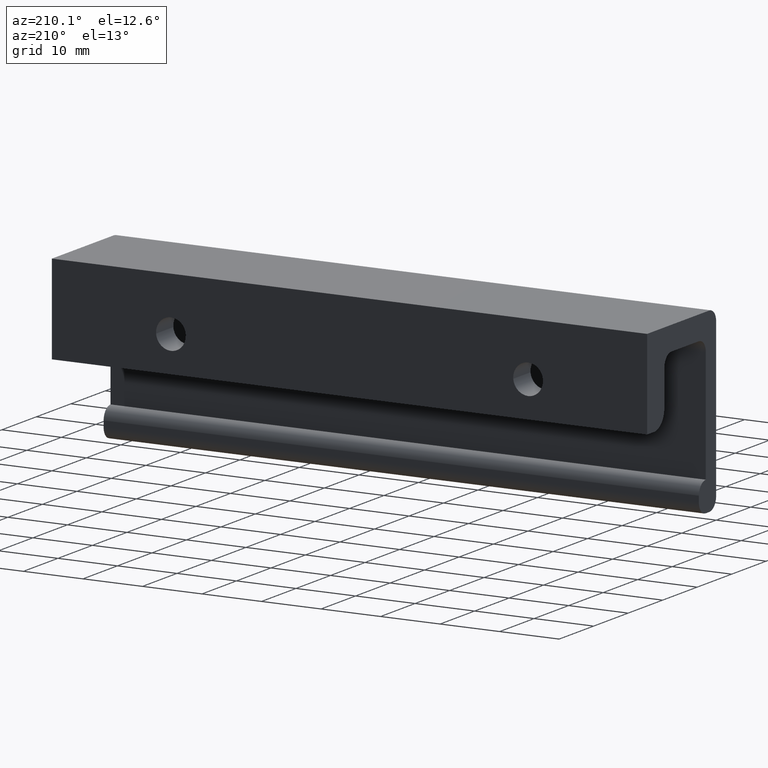
[diagram: clean part render]
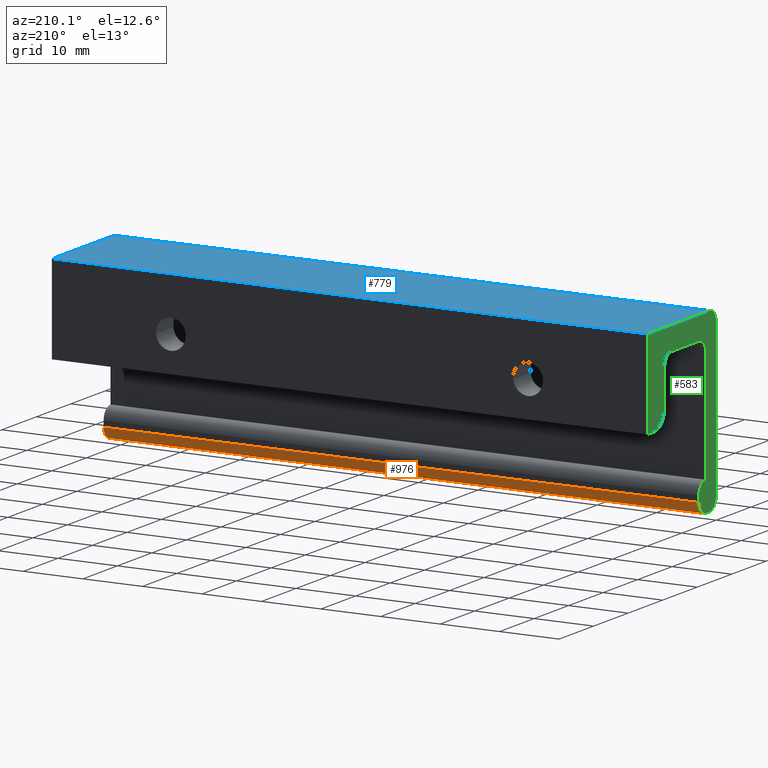
[diagram: same view with three faces highlighted in distinct colors, each labeled with its STEP entity id]
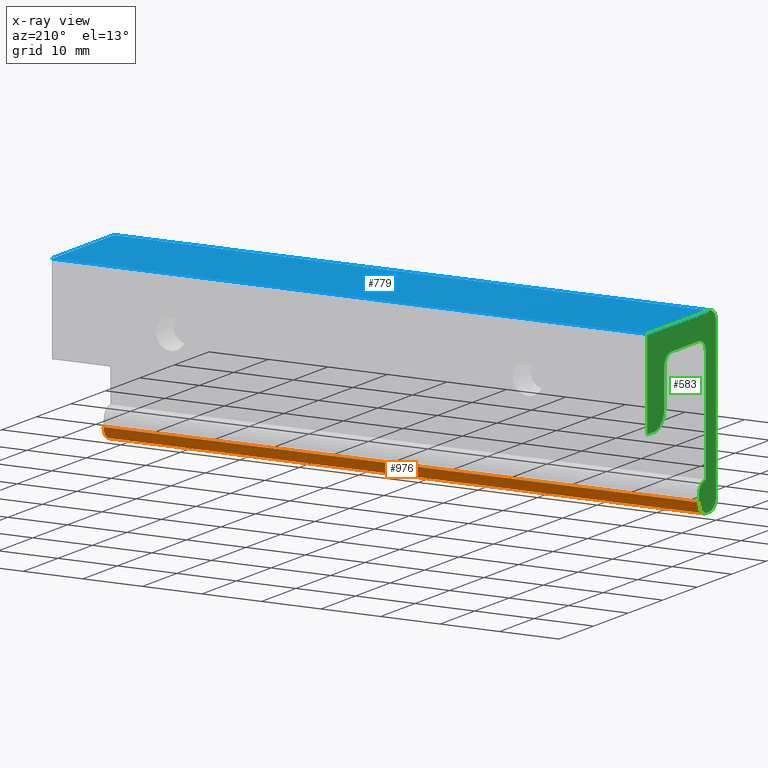
[diagram: x-ray of the same camera — body ghosted, the three highlighted faces saturated]
A machine part, auxiliary view with three faces highlighted in distinct colors.
The next image is the same camera in x-ray (body ghosted, the three faces saturated) — at least one of them is partly hidden behind the body in this view.
Their STEP definitions:

[orange] entity #976 — the highlighted face is a freeform B-spline surface patch.
#532=CARTESIAN_POINT('',(0.0,-15.0,-28.0));
#533=VERTEX_POINT('',#532);
#539=CARTESIAN_POINT('',(0.0,-17.0,-30.0));
#540=VERTEX_POINT('',#539);
#541=CARTESIAN_POINT('',(0.0,-17.0,-30.0));
#542=CARTESIAN_POINT('',(0.0,-15.000000000000009,-30.000000000000004));
#543=CARTESIAN_POINT('',(0.0,-15.0,-28.0));
#551=(BOUNDED_CURVE()B_SPLINE_CURVE(2,(#541,#542,#543),.UNSPECIFIED.,.F.,.U.)CURVE()GEOMETRIC_REPRESENTATION_ITEM()QUASI_UNIFORM_CURVE()RATIONAL_B_SPLINE_CURVE((1.0,0.707106781186548,1.0))REPRESENTATION_ITEM(''));
#552=EDGE_CURVE('',#540,#533,#551,.T.);
#628=CARTESIAN_POINT('',(100.0,-17.0,-30.0));
#629=VERTEX_POINT('',#628);
#635=CARTESIAN_POINT('',(100.0,-15.0,-28.0));
#636=VERTEX_POINT('',#635);
#637=CARTESIAN_POINT('',(100.0,-17.0,-30.0));
#638=CARTESIAN_POINT('',(100.0,-15.000000000000009,-30.000000000000004));
#639=CARTESIAN_POINT('',(100.0,-15.0,-28.0));
#647=(BOUNDED_CURVE()B_SPLINE_CURVE(2,(#637,#638,#639),.UNSPECIFIED.,.F.,.U.)CURVE()GEOMETRIC_REPRESENTATION_ITEM()QUASI_UNIFORM_CURVE()RATIONAL_B_SPLINE_CURVE((1.0,0.707106781186548,1.0))REPRESENTATION_ITEM(''));
#648=EDGE_CURVE('',#629,#636,#647,.T.);
#944=CARTESIAN_POINT('',(100.0,-15.0,-28.0));
#945=CARTESIAN_POINT('',(0.0,-15.0,-28.0));
#946=QUASI_UNIFORM_CURVE('',1,(#944,#945),.UNSPECIFIED.,.F.,.U.);
#947=EDGE_CURVE('',#636,#533,#946,.T.);
#952=CARTESIAN_POINT('',(102.500000000000000,-17.017453070996751,-29.999923846128340));
#953=CARTESIAN_POINT('',(-2.562500000000000,-17.017453070996751,-29.999923846128340));
#954=CARTESIAN_POINT('',(102.500000000000030,-14.872797315976491,-30.018639973359090));
#955=CARTESIAN_POINT('',(-2.562500000000000,-14.872797315976491,-30.018639973359090));
#956=CARTESIAN_POINT('',(102.500000000000000,-15.003730403156270,-27.877902920930289));
#957=CARTESIAN_POINT('',(-2.562500000000000,-15.003730403156270,-27.877902920930289));
#965=(BOUNDED_SURFACE()B_SPLINE_SURFACE(1,2,((#952,#954,#956),(#953,#955,#957)),.UNSPECIFIED.,.F.,.F.,.U.)B_SPLINE_SURFACE_WITH_KNOTS((2,2),(3,3),(0.0,105.062500000000000),(0.0,3.478498999687468),.UNSPECIFIED.)GEOMETRIC_REPRESENTATION_ITEM()RATIONAL_B_SPLINE_SURFACE(((1.0,0.681998360062499,1.0),(1.0,0.681998360062499,1.0)))REPRESENTATION_ITEM('')SURFACE());
#966=ORIENTED_EDGE('',*,*,#552,.T.);
#967=ORIENTED_EDGE('',*,*,#947,.F.);
#968=ORIENTED_EDGE('',*,*,#648,.F.);
#969=CARTESIAN_POINT('',(100.0,-17.0,-30.0));
#970=CARTESIAN_POINT('',(0.0,-17.0,-30.0));
#971=QUASI_UNIFORM_CURVE('',1,(#969,#970),.UNSPECIFIED.,.F.,.U.);
#972=EDGE_CURVE('',#629,#540,#971,.T.);
#973=ORIENTED_EDGE('',*,*,#972,.T.);
#974=EDGE_LOOP('',(#966,#967,#968,#973));
#975=FACE_OUTER_BOUND('',#974,.T.);
#976=ADVANCED_FACE('',(#975),#965,.T.);

[blue] entity #779 — the highlighted face is a freeform B-spline surface patch.
#413=CARTESIAN_POINT('',(0.0,-18.0,0.0));
#414=VERTEX_POINT('',#413);
#430=CARTESIAN_POINT('',(0.0,0.0,0.0));
#431=VERTEX_POINT('',#430);
#432=CARTESIAN_POINT('',(0.0,0.0,0.0));
#433=CARTESIAN_POINT('',(0.0,-18.0,0.0));
#434=QUASI_UNIFORM_CURVE('',1,(#432,#433),.UNSPECIFIED.,.F.,.U.);
#435=EDGE_CURVE('',#431,#414,#434,.T.);
#589=CARTESIAN_POINT('',(100.0,-18.0,0.0));
#590=VERTEX_POINT('',#589);
#745=CARTESIAN_POINT('',(100.0,0.0,0.0));
#746=VERTEX_POINT('',#745);
#752=CARTESIAN_POINT('',(100.0,0.0,0.0));
#753=CARTESIAN_POINT('',(100.0,-18.0,0.0));
#754=QUASI_UNIFORM_CURVE('',1,(#752,#753),.UNSPECIFIED.,.F.,.U.);
#755=EDGE_CURVE('',#746,#590,#754,.T.);
#760=CARTESIAN_POINT('',(104.994999806180600,-18.899099965112509,0.0));
#761=CARTESIAN_POINT('',(-4.995002488389611,-18.899099965112509,0.0));
#762=CARTESIAN_POINT('',(104.994999806180600,0.899100447910131,0.0));
#763=CARTESIAN_POINT('',(-4.995002488389611,0.899100447910131,0.0));
#764=B_SPLINE_SURFACE_WITH_KNOTS('',1,1,((#760,#762),(#761,#763)),.UNSPECIFIED.,.F.,.F.,.U.,(2,2),(2,2),(0.0,109.990002294570200),(0.0,19.798200413022641),.UNSPECIFIED.);
#765=ORIENTED_EDGE('',*,*,#435,.T.);
#766=CARTESIAN_POINT('',(100.0,-18.0,0.0));
#767=CARTESIAN_POINT('',(0.0,-18.0,0.0));
#768=QUASI_UNIFORM_CURVE('',1,(#766,#767),.UNSPECIFIED.,.F.,.U.);
#769=EDGE_CURVE('',#590,#414,#768,.T.);
#770=ORIENTED_EDGE('',*,*,#769,.F.);
#771=ORIENTED_EDGE('',*,*,#755,.F.);
#772=CARTESIAN_POINT('',(100.0,0.0,0.0));
#773=CARTESIAN_POINT('',(0.0,0.0,0.0));
#774=QUASI_UNIFORM_CURVE('',1,(#772,#773),.UNSPECIFIED.,.F.,.U.);
#775=EDGE_CURVE('',#746,#431,#774,.T.);
#776=ORIENTED_EDGE('',*,*,#775,.T.);
#777=EDGE_LOOP('',(#765,#770,#771,#776));
#778=FACE_OUTER_BOUND('',#777,.T.);
#779=ADVANCED_FACE('',(#778),#764,.F.);

[green] entity #583 — the highlighted face is a freeform B-spline surface patch.
#408=CARTESIAN_POINT('',(0.0,-20.998999961236120,1.498499941854179));
#409=CARTESIAN_POINT('',(0.0,0.999000497677920,1.498499941854179));
#410=CARTESIAN_POINT('',(0.0,-20.998999961236120,-31.498500746516889));
#411=CARTESIAN_POINT('',(0.0,0.999000497677920,-31.498500746516889));
#412=B_SPLINE_SURFACE_WITH_KNOTS('',1,1,((#408,#410),(#409,#411)),.UNSPECIFIED.,.F.,.F.,.U.,(2,2),(2,2),(0.0,21.998000458914039),(0.0,32.997000688371067),.UNSPECIFIED.);
#413=CARTESIAN_POINT('',(0.0,-18.0,0.0));
#414=VERTEX_POINT('',#413);
#415=CARTESIAN_POINT('',(0.0,-20.0,-2.0));
#416=VERTEX_POINT('',#415);
#417=CARTESIAN_POINT('',(0.0,-18.0,0.0));
#418=CARTESIAN_POINT('',(0.0,-19.999999999999996,0.0));
#419=CARTESIAN_POINT('',(0.0,-20.0,-2.0));
#427=(BOUNDED_CURVE()B_SPLINE_CURVE(2,(#417,#418,#419),.UNSPECIFIED.,.F.,.U.)CURVE()GEOMETRIC_REPRESENTATION_ITEM()QUASI_UNIFORM_CURVE()RATIONAL_B_SPLINE_CURVE((1.0,0.707106781186548,1.0))REPRESENTATION_ITEM(''));
#428=EDGE_CURVE('',#414,#416,#427,.T.);
#429=ORIENTED_EDGE('',*,*,#428,.F.);
#430=CARTESIAN_POINT('',(0.0,0.0,0.0));
#431=VERTEX_POINT('',#430);
#432=CARTESIAN_POINT('',(0.0,0.0,0.0));
#433=CARTESIAN_POINT('',(0.0,-18.0,0.0));
#434=QUASI_UNIFORM_CURVE('',1,(#432,#433),.UNSPECIFIED.,.F.,.U.);
#435=EDGE_CURVE('',#431,#414,#434,.T.);
#436=ORIENTED_EDGE('',*,*,#435,.F.);
#437=CARTESIAN_POINT('',(0.0,0.0,-15.0));
#438=VERTEX_POINT('',#437);
#439=CARTESIAN_POINT('',(0.0,0.0,-15.0));
#440=CARTESIAN_POINT('',(0.0,0.0,0.0));
#441=QUASI_UNIFORM_CURVE('',1,(#439,#440),.UNSPECIFIED.,.F.,.U.);
#442=EDGE_CURVE('',#438,#431,#441,.T.);
#443=ORIENTED_EDGE('',*,*,#442,.F.);
#444=CARTESIAN_POINT('',(0.0,-2.000000000000085,-15.0));
#445=VERTEX_POINT('',#444);
#446=CARTESIAN_POINT('',(0.0,-2.000000000000085,-15.0));
#447=CARTESIAN_POINT('',(0.0,0.0,-15.0));
#448=QUASI_UNIFORM_CURVE('',1,(#446,#447),.UNSPECIFIED.,.F.,.U.);
#449=EDGE_CURVE('',#445,#438,#448,.T.);
#450=ORIENTED_EDGE('',*,*,#449,.F.);
#451=CARTESIAN_POINT('',(0.0,-5.000000000000091,-12.0));
#452=VERTEX_POINT('',#451);
#453=CARTESIAN_POINT('',(0.0,-5.000000000000085,-12.0));
#454=CARTESIAN_POINT('',(0.0,-5.000000000000085,-14.999999999999995));
#455=CARTESIAN_POINT('',(0.0,-2.000000000000085,-15.0));
#463=(BOUNDED_CURVE()B_SPLINE_CURVE(2,(#453,#454,#455),.UNSPECIFIED.,.F.,.U.)CURVE()GEOMETRIC_REPRESENTATION_ITEM()QUASI_UNIFORM_CURVE()RATIONAL_B_SPLINE_CURVE((1.0,0.707106781186548,1.0))REPRESENTATION_ITEM(''));
#464=EDGE_CURVE('',#452,#445,#463,.T.);
#465=ORIENTED_EDGE('',*,*,#464,.F.);
#466=CARTESIAN_POINT('',(0.0,-5.0,-6.0));
#467=VERTEX_POINT('',#466);
#468=CARTESIAN_POINT('',(0.0,-5.0,-6.0));
#469=CARTESIAN_POINT('',(0.0,-5.000000000000091,-12.0));
#470=QUASI_UNIFORM_CURVE('',1,(#468,#469),.UNSPECIFIED.,.F.,.U.);
#471=EDGE_CURVE('',#467,#452,#470,.T.);
#472=ORIENTED_EDGE('',*,*,#471,.F.);
#473=CARTESIAN_POINT('',(0.0,-7.0,-4.0));
#474=VERTEX_POINT('',#473);
#475=CARTESIAN_POINT('',(0.0,-5.0,-6.0));
#476=CARTESIAN_POINT('',(0.0,-5.000000000000001,-4.000000000000000));
#477=CARTESIAN_POINT('',(0.0,-7.0,-4.0));
#485=(BOUNDED_CURVE()B_SPLINE_CURVE(2,(#475,#476,#477),.UNSPECIFIED.,.F.,.U.)CURVE()GEOMETRIC_REPRESENTATION_ITEM()QUASI_UNIFORM_CURVE()RATIONAL_B_SPLINE_CURVE((1.0,0.707106781186548,1.0))REPRESENTATION_ITEM(''));
#486=EDGE_CURVE('',#467,#474,#485,.T.);
#487=ORIENTED_EDGE('',*,*,#486,.T.);
#488=CARTESIAN_POINT('',(0.0,-15.0,-4.0));
#489=VERTEX_POINT('',#488);
#490=CARTESIAN_POINT('',(0.0,-15.0,-4.0));
#491=CARTESIAN_POINT('',(0.0,-7.0,-4.0));
#492=QUASI_UNIFORM_CURVE('',1,(#490,#491),.UNSPECIFIED.,.F.,.U.);
#493=EDGE_CURVE('',#489,#474,#492,.T.);
#494=ORIENTED_EDGE('',*,*,#493,.F.);
#495=CARTESIAN_POINT('',(0.0,-17.0,-6.0));
#496=VERTEX_POINT('',#495);
#497=CARTESIAN_POINT('',(0.0,-15.0,-4.0));
#498=CARTESIAN_POINT('',(0.0,-17.000000000000004,-4.000000000000000));
#499=CARTESIAN_POINT('',(0.0,-17.0,-6.0));
#507=(BOUNDED_CURVE()B_SPLINE_CURVE(2,(#497,#498,#499),.UNSPECIFIED.,.F.,.U.)CURVE()GEOMETRIC_REPRESENTATION_ITEM()QUASI_UNIFORM_CURVE()RATIONAL_B_SPLINE_CURVE((1.0,0.707106781186548,1.0))REPRESENTATION_ITEM(''));
#508=EDGE_CURVE('',#489,#496,#507,.T.);
#509=ORIENTED_EDGE('',*,*,#508,.T.);
#510=CARTESIAN_POINT('',(0.0,-17.0,-25.0));
#511=VERTEX_POINT('',#510);
#512=CARTESIAN_POINT('',(0.0,-17.0,-25.0));
#513=CARTESIAN_POINT('',(0.0,-17.0,-6.0));
#514=QUASI_UNIFORM_CURVE('',1,(#512,#513),.UNSPECIFIED.,.F.,.U.);
#515=EDGE_CURVE('',#511,#496,#514,.T.);
#516=ORIENTED_EDGE('',*,*,#515,.F.);
#517=CARTESIAN_POINT('',(0.0,-15.0,-27.0));
#518=VERTEX_POINT('',#517);
#519=CARTESIAN_POINT('',(0.0,-15.0,-27.0));
#520=CARTESIAN_POINT('',(0.0,-15.000000000000009,-25.0));
#521=CARTESIAN_POINT('',(0.0,-17.0,-25.0));
#529=(BOUNDED_CURVE()B_SPLINE_CURVE(2,(#519,#520,#521),.UNSPECIFIED.,.F.,.U.)CURVE()GEOMETRIC_REPRESENTATION_ITEM()QUASI_UNIFORM_CURVE()RATIONAL_B_SPLINE_CURVE((1.0,0.707106781186548,1.0))REPRESENTATION_ITEM(''));
#530=EDGE_CURVE('',#518,#511,#529,.T.);
#531=ORIENTED_EDGE('',*,*,#530,.F.);
#532=CARTESIAN_POINT('',(0.0,-15.0,-28.0));
#533=VERTEX_POINT('',#532);
#534=CARTESIAN_POINT('',(0.0,-15.0,-28.0));
#535=CARTESIAN_POINT('',(0.0,-15.0,-27.0));
#536=QUASI_UNIFORM_CURVE('',1,(#534,#535),.UNSPECIFIED.,.F.,.U.);
#537=EDGE_CURVE('',#533,#518,#536,.T.);
#538=ORIENTED_EDGE('',*,*,#537,.F.);
#539=CARTESIAN_POINT('',(0.0,-17.0,-30.0));
#540=VERTEX_POINT('',#539);
#541=CARTESIAN_POINT('',(0.0,-17.0,-30.0));
#542=CARTESIAN_POINT('',(0.0,-15.000000000000009,-30.000000000000004));
#543=CARTESIAN_POINT('',(0.0,-15.0,-28.0));
#551=(BOUNDED_CURVE()B_SPLINE_CURVE(2,(#541,#542,#543),.UNSPECIFIED.,.F.,.U.)CURVE()GEOMETRIC_REPRESENTATION_ITEM()QUASI_UNIFORM_CURVE()RATIONAL_B_SPLINE_CURVE((1.0,0.707106781186548,1.0))REPRESENTATION_ITEM(''));
#552=EDGE_CURVE('',#540,#533,#551,.T.);
#553=ORIENTED_EDGE('',*,*,#552,.F.);
#554=CARTESIAN_POINT('',(0.0,-18.0,-30.0));
#555=VERTEX_POINT('',#554);
#556=CARTESIAN_POINT('',(0.0,-18.0,-30.0));
#557=CARTESIAN_POINT('',(0.0,-17.0,-30.0));
#558=QUASI_UNIFORM_CURVE('',1,(#556,#557),.UNSPECIFIED.,.F.,.U.);
#559=EDGE_CURVE('',#555,#540,#558,.T.);
#560=ORIENTED_EDGE('',*,*,#559,.F.);
#561=CARTESIAN_POINT('',(0.0,-20.0,-28.0));
#562=VERTEX_POINT('',#561);
#563=CARTESIAN_POINT('',(0.0,-20.0,-28.0));
#564=CARTESIAN_POINT('',(0.0,-19.999999999999996,-30.000000000000004));
#565=CARTESIAN_POINT('',(0.0,-18.0,-30.0));
#573=(BOUNDED_CURVE()B_SPLINE_CURVE(2,(#563,#564,#565),.UNSPECIFIED.,.F.,.U.)CURVE()GEOMETRIC_REPRESENTATION_ITEM()QUASI_UNIFORM_CURVE()RATIONAL_B_SPLINE_CURVE((1.0,0.707106781186548,1.0))REPRESENTATION_ITEM(''));
#574=EDGE_CURVE('',#562,#555,#573,.T.);
#575=ORIENTED_EDGE('',*,*,#574,.F.);
#576=CARTESIAN_POINT('',(0.0,-20.0,-2.0));
#577=CARTESIAN_POINT('',(0.0,-20.0,-28.0));
#578=QUASI_UNIFORM_CURVE('',1,(#576,#577),.UNSPECIFIED.,.F.,.U.);
#579=EDGE_CURVE('',#416,#562,#578,.T.);
#580=ORIENTED_EDGE('',*,*,#579,.F.);
#581=EDGE_LOOP('',(#429,#436,#443,#450,#465,#472,#487,#494,#509,#516,#531,#538,#553,#560,#575,#580));
#582=FACE_OUTER_BOUND('',#581,.T.);
#583=ADVANCED_FACE('',(#582),#412,.T.);